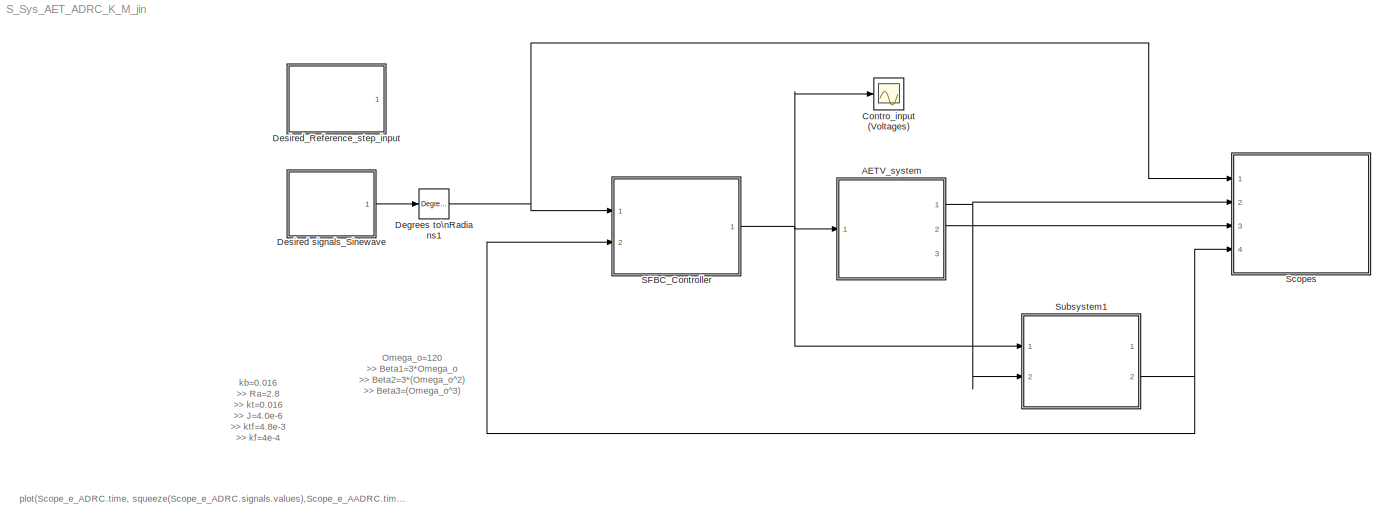
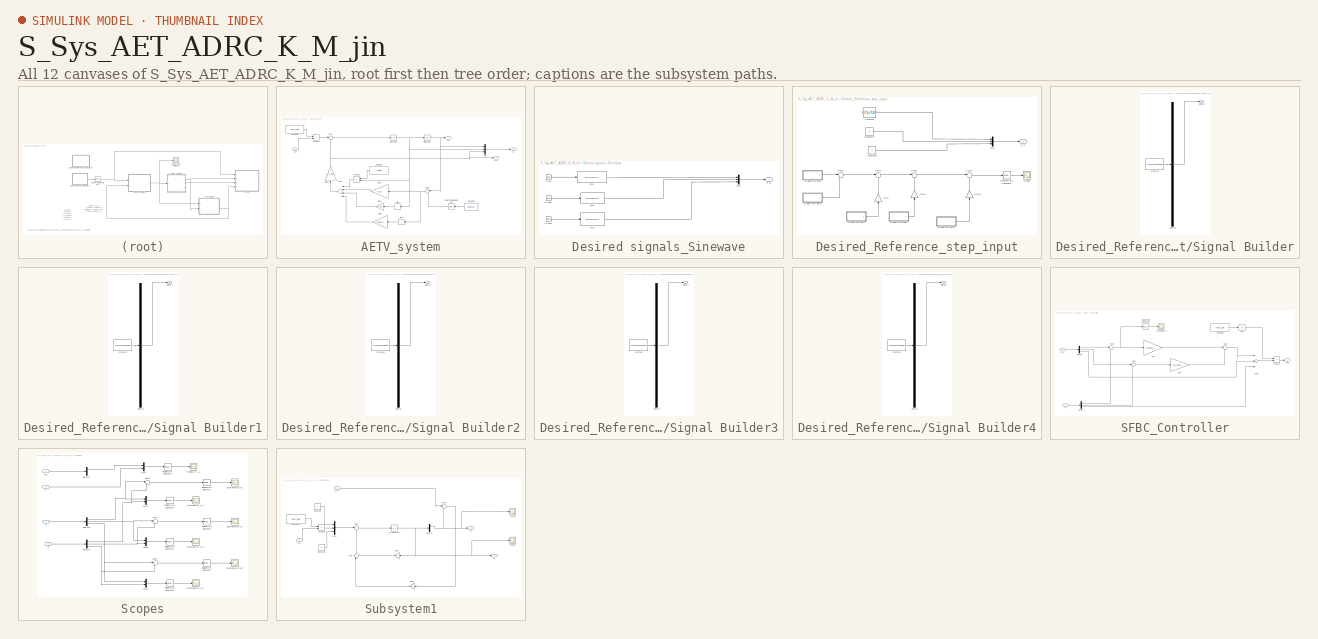
[diagram: thumbnail index - all 12 canvases of the model, root first then tree order]
MODEL S_Sys_AET_ADRC_K_M_jin
KIND model
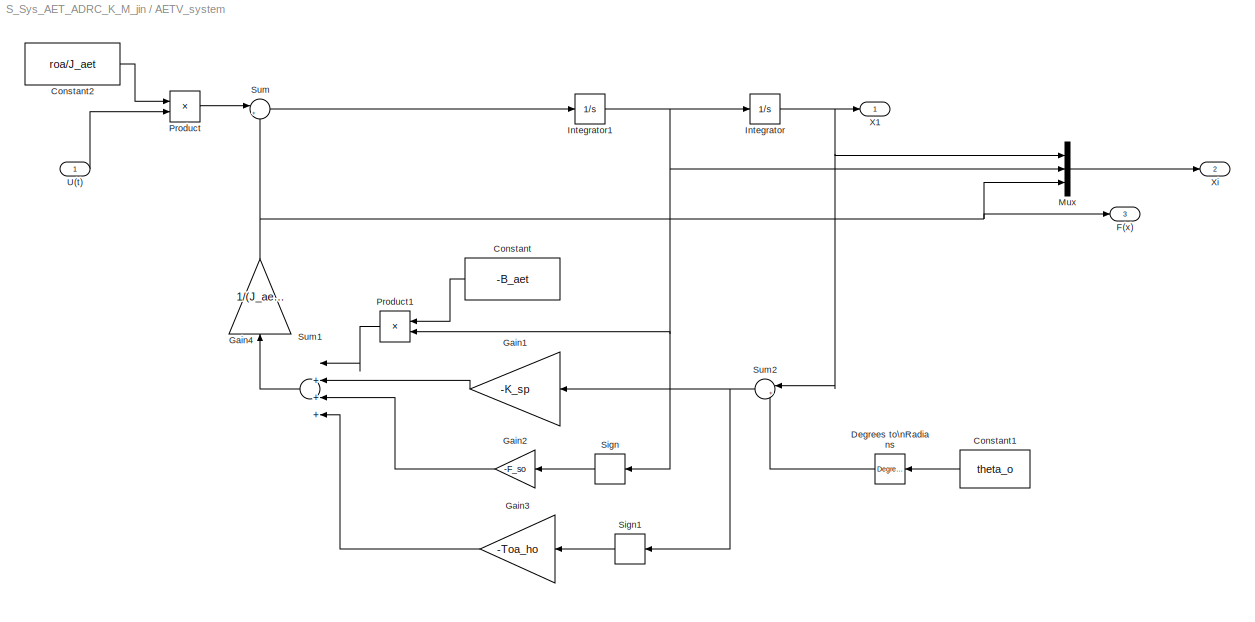
BLOCK [SubSystem] AETV_system
  Ports = [1, 3]
  RequestExecContextInheritance = off
  SID = 21
BLOCK [Constant] AETV_system/Constant
  SID = 5
  Value = -B_aet
BLOCK [Constant] AETV_system/Constant1
  SID = 15
  Value = theta_o
BLOCK [Constant] AETV_system/Constant2
  SID = 20
  Value = roa/J_aet
BLOCK [Reference] AETV_system/Degrees to\nRadians  REF=simulink_extras/Transformations/Degrees to\nRadians
  Ports = [1, 1]
  SID = 175
  SourceBlock = simulink_extras/Transformations/Degrees to\nRadians
  SourceType = DegreesToRadians
BLOCK [Outport] AETV_system/F(x)
  IconDisplay = Port number
  Port = 3
  SID = 32
BLOCK [Gain] AETV_system/Gain1
  Gain = -K_sp
  OutDataTypeStr = Inherit: Inherit via internal rule
  ParamDataTypeStr = Inherit: Inherit via internal rule
  SID = 12
  SaturateOnIntegerOverflow = off
BLOCK [Gain] AETV_system/Gain2
  Gain = -F_so
  OutDataTypeStr = Inherit: Inherit via internal rule
  ParamDataTypeStr = Inherit: Inherit via internal rule
  SID = 14
  SaturateOnIntegerOverflow = off
BLOCK [Gain] AETV_system/Gain3
  Gain = -Toa_ho
  OutDataTypeStr = Inherit: Inherit via internal rule
  ParamDataTypeStr = Inherit: Inherit via internal rule
  SID = 17
  SaturateOnIntegerOverflow = off
BLOCK [Gain] AETV_system/Gain4
  Gain = 1/(J_aet)
  OutDataTypeStr = Inherit: Inherit via internal rule
  ParamDataTypeStr = Inherit: Inherit via internal rule
  SID = 59
  SaturateOnIntegerOverflow = off
BLOCK [Integrator] AETV_system/Integrator
  InitialCondition = 12*pi/180
  Ports = [1, 1]
  SID = 1
BLOCK [Integrator] AETV_system/Integrator1
  Ports = [1, 1]
  SID = 2
BLOCK [Mux] AETV_system/Mux
  DisplayOption = bar
  Inputs = 3
  Ports = [3, 1]
  SID = 6
BLOCK [Product] AETV_system/Product
  InputSameDT = off
  OutDataTypeStr = Inherit: Inherit via internal rule
  Ports = [2, 1]
  SID = 8
  SaturateOnIntegerOverflow = off
BLOCK [Product] AETV_system/Product1
  InputSameDT = off
  OutDataTypeStr = Inherit: Inherit via internal rule
  Ports = [2, 1]
  SID = 11
  SaturateOnIntegerOverflow = off
BLOCK [Signum] AETV_system/Sign
  SID = 13
BLOCK [Signum] AETV_system/Sign1
  SID = 18
BLOCK [Sum] AETV_system/Sum
  IconShape = round
  InputSameDT = off
  Inputs = |++
  OutDataTypeStr = Inherit: Inherit via internal rule
  Ports = [2, 1]
  SID = 3
  SaturateOnIntegerOverflow = off
BLOCK [Sum] AETV_system/Sum1
  InputSameDT = off
  Inputs = |++++
  OutDataTypeStr = Inherit: Inherit via internal rule
  Ports = [4, 1]
  SID = 10
  SaturateOnIntegerOverflow = off
BLOCK [Sum] AETV_system/Sum2
  IconShape = round
  InputSameDT = off
  Inputs = |+-
  OutDataTypeStr = Inherit: Inherit via internal rule
  Ports = [2, 1]
  SID = 16
  SaturateOnIntegerOverflow = off
BLOCK [Inport] AETV_system/U(t)
  IconDisplay = Port number
  SID = 23
BLOCK [Outport] AETV_system/X1
  IconDisplay = Port number
  SID = 22
BLOCK [Outport] AETV_system/Xi
  IconDisplay = Port number
  Port = 2
  SID = 24
BLOCK [Scope] Contro_input (Voltages)
  DataFormat = StructureWithTime
  Floating = off
  LimitDataPoints = off
  NumInputPorts = 1
  Ports = [1]
  SID = 107
  SampleTime = 0
  SaveName = Scope_V_ADRC
  SaveToWorkspace = on
BLOCK [Reference] Degrees to\nRadians1  REF=simulink_extras/Transformations/Degrees to\nRadians
  Ports = [1, 1]
  SID = 118
  SourceBlock = simulink_extras/Transformations/Degrees to\nRadians
  SourceType = DegreesToRadians
BLOCK [SubSystem] Desired signals_Sinewave
  Ports = [0, 1]
  RequestExecContextInheritance = off
  SID = 135
BLOCK [Clock] Desired signals_Sinewave/Clock
  SID = 112
BLOCK [Clock] Desired signals_Sinewave/Clock1
  SID = 117
BLOCK [Clock] Desired signals_Sinewave/Clock2
  SID = 121
BLOCK [Fcn] Desired signals_Sinewave/Fcn1
  Expr = 10*sin(2*u)+10+7
  SID = 113
BLOCK [Fcn] Desired signals_Sinewave/Fcn2
  Expr = 10*2*cos(2*u)
  SID = 119
BLOCK [Fcn] Desired signals_Sinewave/Fcn3
  Expr = -10*2*2*sin(2*u)
  SID = 123
BLOCK [Mux] Desired signals_Sinewave/Mux
  DisplayOption = bar
  Inputs = 3
  Ports = [3, 1]
  SID = 185
BLOCK [Outport] Desired signals_Sinewave/xi_d
  IconDisplay = Port number
  SID = 186
BLOCK [SubSystem] Desired_Reference_step_input
  Ports = [0, 1]
  RequestExecContextInheritance = off
  SID = 146
BLOCK [Constant] Desired_Reference_step_input/Constant
  SID = 163
  Value = 45*pi/180
BLOCK [Constant] Desired_Reference_step_input/Constant1
  SID = 167
  Value = 0
BLOCK [Constant] Desired_Reference_step_input/Constant2
  SID = 170
  Value = 0
BLOCK [Gain] Desired_Reference_step_input/Gain
  Gain = -1
  OutDataTypeStr = Inherit: Inherit via internal rule
  ParamDataTypeStr = Inherit: Inherit via internal rule
  SID = 147
  SaturateOnIntegerOverflow = off
BLOCK [Gain] Desired_Reference_step_input/Gain1
  Gain = -1
  OutDataTypeStr = Inherit: Inherit via internal rule
  ParamDataTypeStr = Inherit: Inherit via internal rule
  SID = 148
  SaturateOnIntegerOverflow = off
BLOCK [Gain] Desired_Reference_step_input/Gain2
  OutDataTypeStr = Inherit: Inherit via internal rule
  ParamDataTypeStr = Inherit: Inherit via internal rule
  SID = 149
  SaturateOnIntegerOverflow = off
BLOCK [Mux] Desired_Reference_step_input/Mux
  DisplayOption = bar
  Inputs = 3
  Ports = [3, 1]
  SID = 228
BLOCK [Reference] Desired_Reference_step_input/Radians\nto Degrees2  REF=simulink_extras/Transformations/Radians\nto Degrees
  Ports = [1, 1]
  SID = 162
  SourceBlock = simulink_extras/Transformations/Radians\nto Degrees
  SourceType = RadiansToDegrees
BLOCK [Scope] Desired_Reference_step_input/Scope
  DataFormat = StructureWithTime
  Floating = off
  LimitDataPoints = off
  NumInputPorts = 1
  Ports = [1]
  SID = 161
  SampleTime = 0
  SaveName = ScopeData10
  SaveToWorkspace = on
BLOCK [SubSystem] Desired_Reference_step_input/Signal Builder
  ClipboardFcn = sigbuilder_block('clipboard');
  CloseFcn = sigbuilder_block('close');
  ContinueFcn = sigbuilder_block('continue')
  CopyFcn = sigbuilder_block('copy');
  DeleteFcn = sigbuilder_block('delete');
  LoadFcn = sigbuilder_block('load');
  MaskHideContents = on
  ModelCloseFcn = sigbuilder_block('modelClose');
  NameChangeFcn = sigbuilder_block('namechange');
  OpenFcn = sigbuilder_block('open',[437.25 117.75 550.5 394.5 ]);
  PauseFcn = sigbuilder_block('pause')
  Ports = [0, 1]
  PreSaveFcn = sigbuilder_block('preSave');
  RequestExecContextInheritance = off
  SID = 150
  StartFcn = sigbuilder_block('start');
  StopFcn = sigbuilder_block('stop');
  Tag = STV Subsys
BLOCK [Demux] Desired_Reference_step_input/Signal Builder/Demux
  Outputs = 1
  Ports = [1, 1]
  SID = 150:1
  Tag = STV Demux
BLOCK [FromWorkspace] Desired_Reference_step_input/Signal Builder/FromWs
  SID = 150:2
  SampleTime = 0
  SigBuilderData = DataTag0
  Tag = STV FromWs
  VariableName = tuvar
  VnvData = DataTag1
  ZeroCross = on
BLOCK [Outport] Desired_Reference_step_input/Signal Builder/Signal 1
  IconDisplay = Port number
  SID = 150:3
  Tag = STV Outport
BLOCK [SubSystem] Desired_Reference_step_input/Signal Builder1
  ClipboardFcn = sigbuilder_block('clipboard');
  CloseFcn = sigbuilder_block('close');
  ContinueFcn = sigbuilder_block('continue')
  CopyFcn = sigbuilder_block('copy');
  DeleteFcn = sigbuilder_block('delete');
  LoadFcn = sigbuilder_block('load');
  MaskHideContents = on
  ModelCloseFcn = sigbuilder_block('modelClose');
  NameChangeFcn = sigbuilder_block('namechange');
  OpenFcn = sigbuilder_block('open',[437.25 117.75 550.5 394.5 ]);
  PauseFcn = sigbuilder_block('pause')
  Ports = [0, 1]
  PreSaveFcn = sigbuilder_block('preSave');
  RequestExecContextInheritance = off
  SID = 151
  StartFcn = sigbuilder_block('start');
  StopFcn = sigbuilder_block('stop');
  Tag = STV Subsys
BLOCK [Demux] Desired_Reference_step_input/Signal Builder1/Demux
  Outputs = 1
  Ports = [1, 1]
  SID = 151:1
  Tag = STV Demux
BLOCK [FromWorkspace] Desired_Reference_step_input/Signal Builder1/FromWs
  SID = 151:2
  SampleTime = 0
  SigBuilderData = DataTag2
  Tag = STV FromWs
  VariableName = tuvar
  VnvData = DataTag3
  ZeroCross = on
BLOCK [Outport] Desired_Reference_step_input/Signal Builder1/Signal 1
  IconDisplay = Port number
  SID = 151:3
  Tag = STV Outport
BLOCK [SubSystem] Desired_Reference_step_input/Signal Builder2
  ClipboardFcn = sigbuilder_block('clipboard');
  CloseFcn = sigbuilder_block('close');
  ContinueFcn = sigbuilder_block('continue')
  CopyFcn = sigbuilder_block('copy');
  DeleteFcn = sigbuilder_block('delete');
  LoadFcn = sigbuilder_block('load');
  MaskHideContents = on
  ModelCloseFcn = sigbuilder_block('modelClose');
  NameChangeFcn = sigbuilder_block('namechange');
  OpenFcn = sigbuilder_block('open',[437.25 117.75 550.5 394.5 ]);
  PauseFcn = sigbuilder_block('pause')
  Ports = [0, 1]
  PreSaveFcn = sigbuilder_block('preSave');
  RequestExecContextInheritance = off
  SID = 152
  StartFcn = sigbuilder_block('start');
  StopFcn = sigbuilder_block('stop');
  Tag = STV Subsys
BLOCK [Demux] Desired_Reference_step_input/Signal Builder2/Demux
  Outputs = 1
  Ports = [1, 1]
  SID = 152:1
  Tag = STV Demux
BLOCK [FromWorkspace] Desired_Reference_step_input/Signal Builder2/FromWs
  SID = 152:2
  SampleTime = 0
  SigBuilderData = DataTag4
  Tag = STV FromWs
  VariableName = tuvar
  VnvData = DataTag5
  ZeroCross = on
BLOCK [Outport] Desired_Reference_step_input/Signal Builder2/Signal 1
  IconDisplay = Port number
  SID = 152:3
  Tag = STV Outport
BLOCK [SubSystem] Desired_Reference_step_input/Signal Builder3
  ClipboardFcn = sigbuilder_block('clipboard');
  CloseFcn = sigbuilder_block('close');
  ContinueFcn = sigbuilder_block('continue')
  CopyFcn = sigbuilder_block('copy');
  DeleteFcn = sigbuilder_block('delete');
  LoadFcn = sigbuilder_block('load');
  MaskHideContents = on
  ModelCloseFcn = sigbuilder_block('modelClose');
  NameChangeFcn = sigbuilder_block('namechange');
  OpenFcn = sigbuilder_block('open',[437.25 117.75 550.5 394.5 ]);
  PauseFcn = sigbuilder_block('pause')
  Ports = [0, 1]
  PreSaveFcn = sigbuilder_block('preSave');
  RequestExecContextInheritance = off
  SID = 153
  StartFcn = sigbuilder_block('start');
  StopFcn = sigbuilder_block('stop');
  Tag = STV Subsys
BLOCK [Demux] Desired_Reference_step_input/Signal Builder3/Demux
  Outputs = 1
  Ports = [1, 1]
  SID = 153:1
  Tag = STV Demux
BLOCK [FromWorkspace] Desired_Reference_step_input/Signal Builder3/FromWs
  SID = 153:2
  SampleTime = 0
  SigBuilderData = DataTag6
  Tag = STV FromWs
  VariableName = tuvar
  VnvData = DataTag7
  ZeroCross = on
BLOCK [Outport] Desired_Reference_step_input/Signal Builder3/Signal 1
  IconDisplay = Port number
  SID = 153:3
  Tag = STV Outport
BLOCK [SubSystem] Desired_Reference_step_input/Signal Builder4
  ClipboardFcn = sigbuilder_block('clipboard');
  CloseFcn = sigbuilder_block('close');
  ContinueFcn = sigbuilder_block('continue')
  CopyFcn = sigbuilder_block('copy');
  DeleteFcn = sigbuilder_block('delete');
  LoadFcn = sigbuilder_block('load');
  MaskHideContents = on
  ModelCloseFcn = sigbuilder_block('modelClose');
  NameChangeFcn = sigbuilder_block('namechange');
  OpenFcn = sigbuilder_block('open',[437.25 117.75 550.5 394.5 ]);
  PauseFcn = sigbuilder_block('pause')
  Ports = [0, 1]
  PreSaveFcn = sigbuilder_block('preSave');
  RequestExecContextInheritance = off
  SID = 154
  StartFcn = sigbuilder_block('start');
  StopFcn = sigbuilder_block('stop');
  Tag = STV Subsys
BLOCK [Demux] Desired_Reference_step_input/Signal Builder4/Demux
  Outputs = 1
  Ports = [1, 1]
  SID = 154:1
  Tag = STV Demux
BLOCK [FromWorkspace] Desired_Reference_step_input/Signal Builder4/FromWs
  SID = 154:2
  SampleTime = 0
  SigBuilderData = DataTag8
  Tag = STV FromWs
  VariableName = tuvar
  VnvData = DataTag9
  ZeroCross = on
BLOCK [Outport] Desired_Reference_step_input/Signal Builder4/Signal 1
  IconDisplay = Port number
  SID = 154:3
  Tag = STV Outport
BLOCK [Sum] Desired_Reference_step_input/Sum2
  IconShape = round
  InputSameDT = off
  Inputs = |++
  OutDataTypeStr = Inherit: Inherit via internal rule
  Ports = [2, 1]
  SID = 155
  SaturateOnIntegerOverflow = off
BLOCK [Sum] Desired_Reference_step_input/Sum3
  IconShape = round
  InputSameDT = off
  Inputs = |++
  OutDataTypeStr = Inherit: Inherit via internal rule
  Ports = [2, 1]
  SID = 156
  SaturateOnIntegerOverflow = off
BLOCK [Sum] Desired_Reference_step_input/Sum4
  IconShape = round
  InputSameDT = off
  Inputs = |++
  OutDataTypeStr = Inherit: Inherit via internal rule
  Ports = [2, 1]
  SID = 157
  SaturateOnIntegerOverflow = off
BLOCK [Sum] Desired_Reference_step_input/Sum5
  IconShape = round
  InputSameDT = off
  Inputs = |+-
  OutDataTypeStr = Inherit: Inherit via internal rule
  Ports = [2, 1]
  SID = 158
  SaturateOnIntegerOverflow = off
BLOCK [Outport] Desired_Reference_step_input/xi_d
  IconDisplay = Port number
  SID = 229
BLOCK [SubSystem] SFBC_Controller
  Ports = [2, 1]
  RequestExecContextInheritance = off
  SID = 139
BLOCK [Constant] SFBC_Controller/Constant2
  SID = 176
  Value = roa/J_aet
BLOCK [Demux] SFBC_Controller/Demux
  DisplayOption = bar
  Outputs = 3
  Ports = [1, 3]
  SID = 187
BLOCK [Demux] SFBC_Controller/Demux1
  DisplayOption = bar
  Outputs = 3
  Ports = [1, 3]
  SID = 188
BLOCK [Fcn] SFBC_Controller/Fcn
  Expr = 1/u
  SID = 57
BLOCK [Gain] SFBC_Controller/Gain
  Gain = (omga_c)^2
  OutDataTypeStr = Inherit: Inherit via internal rule
  ParamDataTypeStr = Inherit: Inherit via internal rule
  SID = 28
  SaturateOnIntegerOverflow = off
BLOCK [Gain] SFBC_Controller/Gain1
  Gain = (2*(omga_c))
  OutDataTypeStr = Inherit: Inherit via internal rule
  ParamDataTypeStr = Inherit: Inherit via internal rule
  SID = 29
  SaturateOnIntegerOverflow = off
BLOCK [Outport] SFBC_Controller/Out1
  IconDisplay = Port number
  SID = 140
BLOCK [Product] SFBC_Controller/Product
  InputSameDT = off
  OutDataTypeStr = Inherit: Inherit via internal rule
  Ports = [2, 1]
  SID = 58
  SaturateOnIntegerOverflow = off
BLOCK [Reference] SFBC_Controller/Radians\nto Degrees4  REF=simulink_extras/Transformations/Radians\nto Degrees
  Ports = [1, 1]
  SID = 172
  SourceBlock = simulink_extras/Transformations/Radians\nto Degrees
  SourceType = RadiansToDegrees
BLOCK [Sum] SFBC_Controller/Sum1
  IconShape = round
  InputSameDT = off
  Inputs = |++
  OutDataTypeStr = Inherit: Inherit via internal rule
  Ports = [2, 1]
  SID = 31
  SaturateOnIntegerOverflow = off
BLOCK [Sum] SFBC_Controller/Sum2
  InputSameDT = off
  Inputs = |++-
  OutDataTypeStr = Inherit: Inherit via internal rule
  Ports = [3, 1]
  SID = 33
  SaturateOnIntegerOverflow = off
BLOCK [Sum] SFBC_Controller/Sum3
  IconShape = round
  InputSameDT = off
  Inputs = |+-
  OutDataTypeStr = Inherit: Inherit via internal rule
  Ports = [2, 1]
  SID = 120
  SaturateOnIntegerOverflow = off
BLOCK [Sum] SFBC_Controller/Sum4
  IconShape = round
  InputSameDT = off
  Inputs = |+-
  OutDataTypeStr = Inherit: Inherit via internal rule
  Ports = [2, 1]
  SID = 189
  SaturateOnIntegerOverflow = off
BLOCK [Scope] SFBC_Controller/Tracking erro
  DataFormat = StructureWithTime
  Floating = off
  LimitDataPoints = off
  NumInputPorts = 1
  Ports = [1]
  SID = 171
  SampleTime = 0
  SaveName = Scope_e_ADRC
  SaveToWorkspace = on
BLOCK [Inport] SFBC_Controller/Xd_i
  IconDisplay = Port number
  SID = 142
BLOCK [Inport] SFBC_Controller/Xi^
  IconDisplay = Port number
  Port = 2
  SID = 141
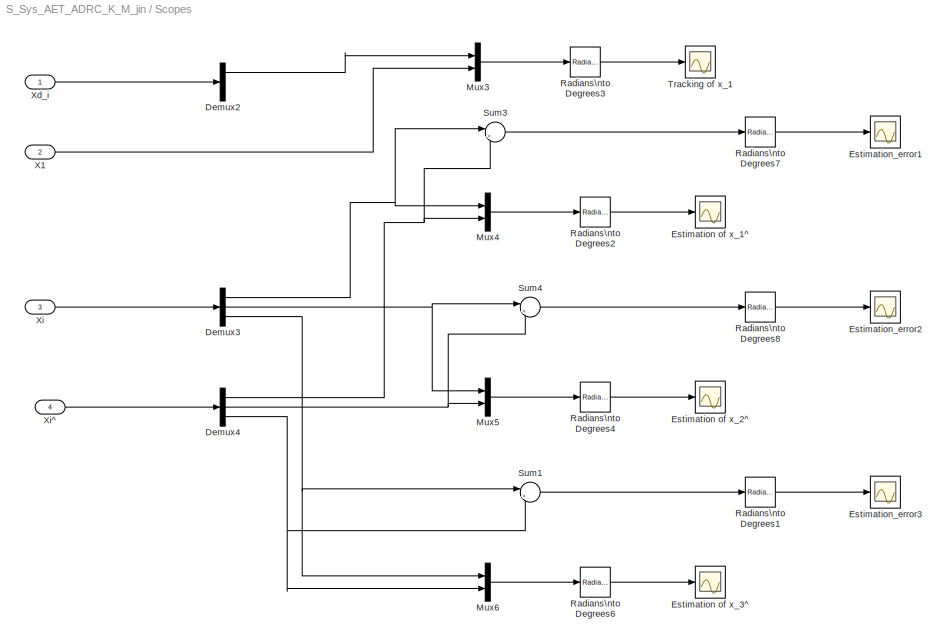
BLOCK [SubSystem] Scopes
  Ports = [4]
  RequestExecContextInheritance = off
  SID = 190
BLOCK [Demux] Scopes/Demux2
  DisplayOption = bar
  Outputs = 3
  Ports = [1, 3]
  SID = 200
BLOCK [Demux] Scopes/Demux3
  DisplayOption = bar
  Outputs = 3
  Ports = [1, 3]
  SID = 201
BLOCK [Demux] Scopes/Demux4
  DisplayOption = bar
  Outputs = 3
  Ports = [1, 3]
  SID = 207
BLOCK [Scope] Scopes/Estimation of x_1^
  DataFormat = StructureWithTime
  Floating = off
  LimitDataPoints = off
  NumInputPorts = 1
  Ports = [1]
  SID = 210
  SampleTime = 0
  SaveName = Scope1
  SaveToWorkspace = on
BLOCK [Scope] Scopes/Estimation of x_2^
  DataFormat = StructureWithTime
  Floating = off
  LimitDataPoints = off
  NumInputPorts = 1
  Ports = [1]
  SID = 213
  SampleTime = 0
  SaveName = Scope2
  SaveToWorkspace = on
BLOCK [Scope] Scopes/Estimation of x_3^
  DataFormat = StructureWithTime
  Floating = off
  LimitDataPoints = off
  NumInputPorts = 1
  Ports = [1]
  SID = 214
  SampleTime = 0
  SaveName = Scope3
  SaveToWorkspace = on
BLOCK [Scope] Scopes/Estimation_error1
  DataFormat = StructureWithTime
  Floating = off
  LimitDataPoints = off
  NumInputPorts = 1
  Ports = [1]
  SID = 219
  SampleTime = 0
  SaveName = Scope_estev_ADRC1
  SaveToWorkspace = on
BLOCK [Scope] Scopes/Estimation_error2
  DataFormat = StructureWithTime
  Floating = off
  LimitDataPoints = off
  NumInputPorts = 1
  Ports = [1]
  SID = 220
  SampleTime = 0
  SaveName = Scope_estev_ADRC2
  SaveToWorkspace = on
BLOCK [Scope] Scopes/Estimation_error3
  DataFormat = StructureWithTime
  Floating = off
  LimitDataPoints = off
  NumInputPorts = 1
  Ports = [1]
  SID = 225
  SampleTime = 0
  SaveName = Scope_estev_ADRC
  SaveToWorkspace = on
BLOCK [Mux] Scopes/Mux3
  DisplayOption = bar
  Inputs = 2
  Ports = [2, 1]
  SID = 204
BLOCK [Mux] Scopes/Mux4
  DisplayOption = bar
  Inputs = 2
  Ports = [2, 1]
  SID = 208
BLOCK [Mux] Scopes/Mux5
  DisplayOption = bar
  Inputs = 2
  Ports = [2, 1]
  SID = 211
BLOCK [Mux] Scopes/Mux6
  DisplayOption = bar
  Inputs = 2
  Ports = [2, 1]
  SID = 215
BLOCK [Reference] Scopes/Radians\nto Degrees1  REF=simulink_extras/Transformations/Radians\nto Degrees
  Ports = [1, 1]
  SID = 226
  SourceBlock = simulink_extras/Transformations/Radians\nto Degrees
  SourceType = RadiansToDegrees
BLOCK [Reference] Scopes/Radians\nto Degrees2  REF=simulink_extras/Transformations/Radians\nto Degrees
  Ports = [1, 1]
  SID = 209
  SourceBlock = simulink_extras/Transformations/Radians\nto Degrees
  SourceType = RadiansToDegrees
BLOCK [Reference] Scopes/Radians\nto Degrees3  REF=simulink_extras/Transformations/Radians\nto Degrees
  Ports = [1, 1]
  SID = 127
  SourceBlock = simulink_extras/Transformations/Radians\nto Degrees
  SourceType = RadiansToDegrees
BLOCK [Reference] Scopes/Radians\nto Degrees4  REF=simulink_extras/Transformations/Radians\nto Degrees
  Ports = [1, 1]
  SID = 212
  SourceBlock = simulink_extras/Transformations/Radians\nto Degrees
  SourceType = RadiansToDegrees
BLOCK [Reference] Scopes/Radians\nto Degrees6  REF=simulink_extras/Transformations/Radians\nto Degrees
  Ports = [1, 1]
  SID = 216
  SourceBlock = simulink_extras/Transformations/Radians\nto Degrees
  SourceType = RadiansToDegrees
BLOCK [Reference] Scopes/Radians\nto Degrees7  REF=simulink_extras/Transformations/Radians\nto Degrees
  Ports = [1, 1]
  SID = 217
  SourceBlock = simulink_extras/Transformations/Radians\nto Degrees
  SourceType = RadiansToDegrees
BLOCK [Reference] Scopes/Radians\nto Degrees8  REF=simulink_extras/Transformations/Radians\nto Degrees
  Ports = [1, 1]
  SID = 221
  SourceBlock = simulink_extras/Transformations/Radians\nto Degrees
  SourceType = RadiansToDegrees
BLOCK [Sum] Scopes/Sum1
  IconShape = round
  InputSameDT = off
  Inputs = |+-
  OutDataTypeStr = Inherit: Inherit via internal rule
  Ports = [2, 1]
  SID = 227
  SaturateOnIntegerOverflow = off
BLOCK [Sum] Scopes/Sum3
  IconShape = round
  InputSameDT = off
  Inputs = |+-
  OutDataTypeStr = Inherit: Inherit via internal rule
  Ports = [2, 1]
  SID = 218
  SaturateOnIntegerOverflow = off
BLOCK [Sum] Scopes/Sum4
  IconShape = round
  InputSameDT = off
  Inputs = |+-
  OutDataTypeStr = Inherit: Inherit via internal rule
  Ports = [2, 1]
  SID = 222
  SaturateOnIntegerOverflow = off
BLOCK [Scope] Scopes/Tracking of x_1
  DataFormat = StructureWithTime
  Floating = off
  LimitDataPoints = off
  NumInputPorts = 1
  Ports = [1]
  SID = 4
  SampleTime = 0
  SaveName = Scope
  SaveToWorkspace = on
BLOCK [Inport] Scopes/X1
  IconDisplay = Port number
  Port = 2
  SID = 193
BLOCK [Inport] Scopes/Xd_i
  IconDisplay = Port number
  SID = 191
BLOCK [Inport] Scopes/Xi
  IconDisplay = Port number
  Port = 3
  SID = 205
BLOCK [Inport] Scopes/Xi^
  IconDisplay = Port number
  Port = 4
  SID = 206
BLOCK [SubSystem] Subsystem1
  Ports = [2, 2]
  RequestExecContextInheritance = off
  SID = 64
BLOCK [Constant] Subsystem1/Constant
  SID = 90
  Value = 0
BLOCK [Constant] Subsystem1/Constant1
  SID = 91
  Value = 0
BLOCK [Constant] Subsystem1/Constant2
  SID = 177
  Value = roa/J_aet
BLOCK [Demux] Subsystem1/Demux
  DisplayOption = bar
  Outputs = 3
  Ports = [1, 3]
  SID = 103
BLOCK [Gain] Subsystem1/Gain
  Gain = [0 1 0;0 0 1;0 0 0]
  Multiplication = Matrix(K*u)
  OutDataTypeStr = Inherit: Inherit via internal rule
  ParamDataTypeStr = Inherit: Inherit via internal rule
  SID = 86
  SaturateOnIntegerOverflow = off
BLOCK [Gain] Subsystem1/Gain2
  Gain = [Beta1 Beta2 Beta3]'
  OutDataTypeStr = Inherit: Inherit via internal rule
  ParamDataTypeStr = Inherit: Inherit via internal rule
  SID = 95
  SaturateOnIntegerOverflow = off
BLOCK [Integrator] Subsystem1/Integrator1
  InitialCondition = [12*pi/180 0 0]'
  Ports = [1, 1]
  SID = 74
BLOCK [Mux] Subsystem1/Mux
  DisplayOption = bar
  Inputs = 3
  Ports = [3, 1]
  SID = 89
BLOCK [Product] Subsystem1/Product
  InputSameDT = off
  OutDataTypeStr = Inherit: Inherit via internal rule
  Ports = [2, 1]
  SID = 76
  SaturateOnIntegerOverflow = off
BLOCK [Scope] Subsystem1/Scope
  DataFormat = StructureWithTime
  Floating = off
  NumInputPorts = 1
  Ports = [1]
  SID = 101
  SampleTime = 0
  SaveName = ScopeData3
BLOCK [Scope] Subsystem1/Scope1
  DataFormat = StructureWithTime
  Floating = off
  NumInputPorts = 1
  Ports = [1]
  SID = 102
  SampleTime = 0
  SaveName = ScopeData4
BLOCK [Sum] Subsystem1/Sum
  IconShape = round
  InputSameDT = off
  Inputs = |++
  OutDataTypeStr = Inherit: Inherit via internal rule
  Ports = [2, 1]
  SID = 80
  SaturateOnIntegerOverflow = off
BLOCK [Sum] Subsystem1/Sum1
  IconShape = round
  InputSameDT = off
  Inputs = |++
  OutDataTypeStr = Inherit: Inherit via internal rule
  Ports = [2, 1]
  SID = 87
  SaturateOnIntegerOverflow = off
BLOCK [Sum] Subsystem1/Sum2
  IconShape = round
  InputSameDT = off
  Inputs = |+-
  OutDataTypeStr = Inherit: Inherit via internal rule
  Ports = [2, 1]
  SID = 94
  SaturateOnIntegerOverflow = off
BLOCK [Inport] Subsystem1/U(t)
  IconDisplay = Port number
  SID = 65
BLOCK [Outport] Subsystem1/X1
  IconDisplay = Port number
  SID = 83
BLOCK [Inport] Subsystem1/X1(t)
  IconDisplay = Port number
  Port = 2
  SID = 92
BLOCK [Outport] Subsystem1/Xi^
  IconDisplay = Port number
  Port = 2
  SID = 96
ANNOTATION (root): Omega_o=120\n>> Beta1=3*Omega_o\n>> Beta2=3*(Omega_o^2)\n>> Beta3=(Omega_o^3)
ANNOTATION (root): kb=0.016\n>> Ra=2.8\n>> kt=0.016\n>> J=4.0e-6\n>> ktf=4.8e-3\n>> kf=4e-4\n>> theta_o=0.0349\n>> ksp=0.0247\n>> n=16.95\n>> kpre=0.107\n>> Vbat=0.24\nomga_c=40
ANNOTATION (root): plot(Scope_e_ADRC.time, squeeze(Scope_e_ADRC.signals.values),Scope_e_AADRC.time, squeeze(Scope_e_AADRC.signals.values))
LINE AETV_system/Constant1:1 -> AETV_system/Degrees to\nRadians:1
LINE AETV_system/Constant2:1 -> AETV_system/Product:1
LINE AETV_system/Constant:1 -> AETV_system/Product1:1
LINE AETV_system/Degrees to\nRadians:1 -> AETV_system/Sum2:2
LINE AETV_system/Gain1:1 -> AETV_system/Sum1:2
LINE AETV_system/Gain2:1 -> AETV_system/Sum1:3
LINE AETV_system/Gain3:1 -> AETV_system/Sum1:4
NET AETV_system/Gain4:1 -> AETV_system/F(x):1, AETV_system/Mux:3, AETV_system/Sum:2
NET AETV_system/Integrator1:1 -> AETV_system/Integrator:1, AETV_system/Mux:2, AETV_system/Product1:2, AETV_system/Sign:1
NET AETV_system/Integrator:1 -> AETV_system/Mux:1, AETV_system/Sum2:1, AETV_system/X1:1
LINE AETV_system/Mux:1 -> AETV_system/Xi:1
LINE AETV_system/Product1:1 -> AETV_system/Sum1:1
LINE AETV_system/Product:1 -> AETV_system/Sum:1
LINE AETV_system/Sign1:1 -> AETV_system/Gain3:1
LINE AETV_system/Sign:1 -> AETV_system/Gain2:1
LINE AETV_system/Sum1:1 -> AETV_system/Gain4:1
NET AETV_system/Sum2:1 -> AETV_system/Gain1:1, AETV_system/Sign1:1
LINE AETV_system/Sum:1 -> AETV_system/Integrator1:1
LINE AETV_system/U(t):1 -> AETV_system/Product:2
NET AETV_system:1 -> Scopes:2, Subsystem1:2
LINE AETV_system:2 -> Scopes:3
NET Degrees to\nRadians1:1 -> SFBC_Controller:1, Scopes:1
LINE Desired signals_Sinewave/Clock1:1 -> Desired signals_Sinewave/Fcn2:1
LINE Desired signals_Sinewave/Clock2:1 -> Desired signals_Sinewave/Fcn3:1
LINE Desired signals_Sinewave/Clock:1 -> Desired signals_Sinewave/Fcn1:1
LINE Desired signals_Sinewave/Fcn1:1 -> Desired signals_Sinewave/Mux:1
LINE Desired signals_Sinewave/Fcn2:1 -> Desired signals_Sinewave/Mux:2
LINE Desired signals_Sinewave/Fcn3:1 -> Desired signals_Sinewave/Mux:3
LINE Desired signals_Sinewave/Mux:1 -> Desired signals_Sinewave/xi_d:1
LINE Desired signals_Sinewave:1 -> Degrees to\nRadians1:1
LINE Desired_Reference_step_input/Constant1:1 -> Desired_Reference_step_input/Mux:2
LINE Desired_Reference_step_input/Constant2:1 -> Desired_Reference_step_input/Mux:3
LINE Desired_Reference_step_input/Constant:1 -> Desired_Reference_step_input/Mux:1
LINE Desired_Reference_step_input/Gain1:1 -> Desired_Reference_step_input/Sum3:2
LINE Desired_Reference_step_input/Gain2:1 -> Desired_Reference_step_input/Sum5:2
LINE Desired_Reference_step_input/Gain:1 -> Desired_Reference_step_input/Sum4:2
LINE Desired_Reference_step_input/Mux:1 -> Desired_Reference_step_input/xi_d:1
LINE Desired_Reference_step_input/Radians\nto Degrees2:1 -> Desired_Reference_step_input/Scope:1
LINE Desired_Reference_step_input/Signal Builder/Demux:1 -> Desired_Reference_step_input/Signal Builder/Signal 1:1
LINE Desired_Reference_step_input/Signal Builder/FromWs:1 -> Desired_Reference_step_input/Signal Builder/Demux:1
LINE Desired_Reference_step_input/Signal Builder1/Demux:1 -> Desired_Reference_step_input/Signal Builder1/Signal 1:1
LINE Desired_Reference_step_input/Signal Builder1/FromWs:1 -> Desired_Reference_step_input/Signal Builder1/Demux:1
LINE Desired_Reference_step_input/Signal Builder1:1 -> Desired_Reference_step_input/Sum2:2
LINE Desired_Reference_step_input/Signal Builder2/Demux:1 -> Desired_Reference_step_input/Signal Builder2/Signal 1:1
LINE Desired_Reference_step_input/Signal Builder2/FromWs:1 -> Desired_Reference_step_input/Signal Builder2/Demux:1
LINE Desired_Reference_step_input/Signal Builder2:1 -> Desired_Reference_step_input/Gain:1
LINE Desired_Reference_step_input/Signal Builder3/Demux:1 -> Desired_Reference_step_input/Signal Builder3/Signal 1:1
LINE Desired_Reference_step_input/Signal Builder3/FromWs:1 -> Desired_Reference_step_input/Signal Builder3/Demux:1
LINE Desired_Reference_step_input/Signal Builder3:1 -> Desired_Reference_step_input/Gain1:1
LINE Desired_Reference_step_input/Signal Builder4/Demux:1 -> Desired_Reference_step_input/Signal Builder4/Signal 1:1
LINE Desired_Reference_step_input/Signal Builder4/FromWs:1 -> Desired_Reference_step_input/Signal Builder4/Demux:1
LINE Desired_Reference_step_input/Signal Builder4:1 -> Desired_Reference_step_input/Gain2:1
LINE Desired_Reference_step_input/Signal Builder:1 -> Desired_Reference_step_input/Sum2:1
LINE Desired_Reference_step_input/Sum2:1 -> Desired_Reference_step_input/Sum4:1
LINE Desired_Reference_step_input/Sum3:1 -> Desired_Reference_step_input/Sum5:1
LINE Desired_Reference_step_input/Sum4:1 -> Desired_Reference_step_input/Sum3:1
LINE Desired_Reference_step_input/Sum5:1 -> Desired_Reference_step_input/Radians\nto Degrees2:1
LINE SFBC_Controller/Constant2:1 -> SFBC_Controller/Fcn:1
LINE SFBC_Controller/Demux1:1 -> SFBC_Controller/Sum3:2
LINE SFBC_Controller/Demux1:2 -> SFBC_Controller/Sum4:2
LINE SFBC_Controller/Demux1:3 -> SFBC_Controller/Sum2:3
LINE SFBC_Controller/Demux:1 -> SFBC_Controller/Sum3:1
LINE SFBC_Controller/Demux:2 -> SFBC_Controller/Sum4:1
LINE SFBC_Controller/Demux:3 -> SFBC_Controller/Sum2:2
LINE SFBC_Controller/Fcn:1 -> SFBC_Controller/Product:1
LINE SFBC_Controller/Gain1:1 -> SFBC_Controller/Sum1:2
LINE SFBC_Controller/Gain:1 -> SFBC_Controller/Sum1:1
LINE SFBC_Controller/Product:1 -> SFBC_Controller/Out1:1
LINE SFBC_Controller/Radians\nto Degrees4:1 -> SFBC_Controller/Tracking erro:1
LINE SFBC_Controller/Sum1:1 -> SFBC_Controller/Sum2:1
LINE SFBC_Controller/Sum2:1 -> SFBC_Controller/Product:2
NET SFBC_Controller/Sum3:1 -> SFBC_Controller/Gain:1, SFBC_Controller/Radians\nto Degrees4:1
LINE SFBC_Controller/Sum4:1 -> SFBC_Controller/Gain1:1
LINE SFBC_Controller/Xd_i:1 -> SFBC_Controller/Demux:1
LINE SFBC_Controller/Xi^:1 -> SFBC_Controller/Demux1:1
NET SFBC_Controller:1 -> AETV_system:1, Contro_input (Voltages):1, Subsystem1:1
LINE Scopes/Demux2:1 -> Scopes/Mux3:1
NET Scopes/Demux3:1 -> Scopes/Mux4:1, Scopes/Sum3:1
NET Scopes/Demux3:2 -> Scopes/Mux5:1, Scopes/Sum4:1
NET Scopes/Demux3:3 -> Scopes/Mux6:1, Scopes/Sum1:1
NET Scopes/Demux4:1 -> Scopes/Mux4:2, Scopes/Sum3:2
NET Scopes/Demux4:2 -> Scopes/Mux5:2, Scopes/Sum4:2
NET Scopes/Demux4:3 -> Scopes/Mux6:2, Scopes/Sum1:2
LINE Scopes/Mux3:1 -> Scopes/Radians\nto Degrees3:1
LINE Scopes/Mux4:1 -> Scopes/Radians\nto Degrees2:1
LINE Scopes/Mux5:1 -> Scopes/Radians\nto Degrees4:1
LINE Scopes/Mux6:1 -> Scopes/Radians\nto Degrees6:1
LINE Scopes/Radians\nto Degrees1:1 -> Scopes/Estimation_error3:1
LINE Scopes/Radians\nto Degrees2:1 -> Scopes/Estimation of x_1^:1
LINE Scopes/Radians\nto Degrees3:1 -> Scopes/Tracking of x_1:1
LINE Scopes/Radians\nto Degrees4:1 -> Scopes/Estimation of x_2^:1
LINE Scopes/Radians\nto Degrees6:1 -> Scopes/Estimation of x_3^:1
LINE Scopes/Radians\nto Degrees7:1 -> Scopes/Estimation_error1:1
LINE Scopes/Radians\nto Degrees8:1 -> Scopes/Estimation_error2:1
LINE Scopes/Sum1:1 -> Scopes/Radians\nto Degrees1:1
LINE Scopes/Sum3:1 -> Scopes/Radians\nto Degrees7:1
LINE Scopes/Sum4:1 -> Scopes/Radians\nto Degrees8:1
LINE Scopes/X1:1 -> Scopes/Mux3:2
LINE Scopes/Xd_i:1 -> Scopes/Demux2:1
LINE Scopes/Xi:1 -> Scopes/Demux3:1
LINE Scopes/Xi^:1 -> Scopes/Demux4:1
LINE Subsystem1/Constant1:1 -> Subsystem1/Mux:3
LINE Subsystem1/Constant2:1 -> Subsystem1/Product:1
LINE Subsystem1/Constant:1 -> Subsystem1/Mux:1
NET Subsystem1/Demux:1 -> Subsystem1/Scope:1, Subsystem1/Sum2:2, Subsystem1/X1:1
LINE Subsystem1/Gain2:1 -> Subsystem1/Sum1:1
LINE Subsystem1/Gain:1 -> Subsystem1/Sum1:2
NET Subsystem1/Integrator1:1 -> Subsystem1/Demux:1, Subsystem1/Gain:1, Subsystem1/Scope1:1, Subsystem1/Xi^:1
LINE Subsystem1/Mux:1 -> Subsystem1/Sum:1
LINE Subsystem1/Product:1 -> Subsystem1/Mux:2
LINE Subsystem1/Sum1:1 -> Subsystem1/Sum:2
LINE Subsystem1/Sum2:1 -> Subsystem1/Gain2:1
LINE Subsystem1/Sum:1 -> Subsystem1/Integrator1:1
LINE Subsystem1/U(t):1 -> Subsystem1/Product:2
LINE Subsystem1/X1(t):1 -> Subsystem1/Sum2:1
NET Subsystem1:2 -> SFBC_Controller:2, Scopes:4
note: NET lines group one-source signal fan-out (src -> all destinations, sorted); 1:1 wires keep LINE
